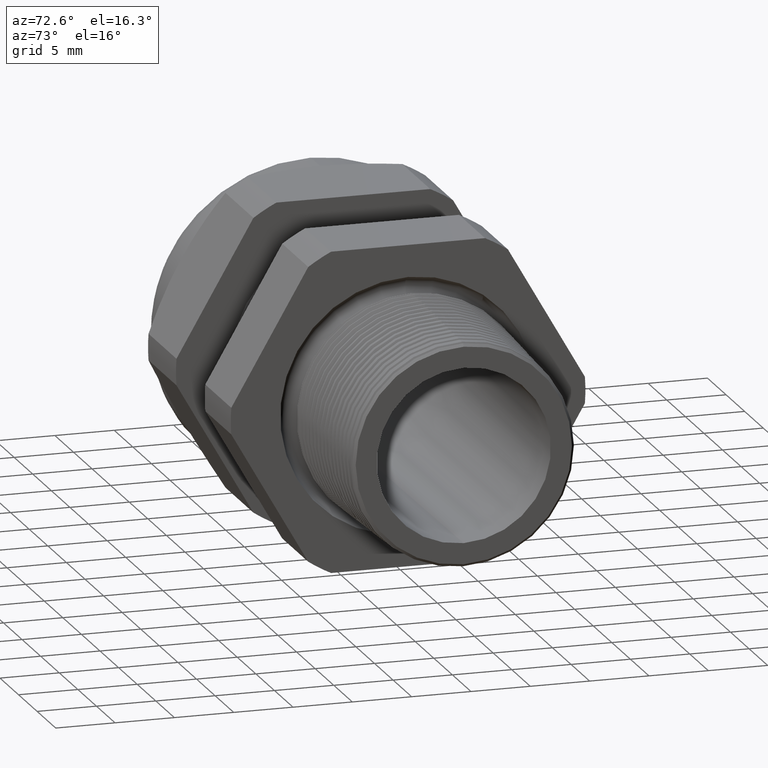
[diagram: clean part render]
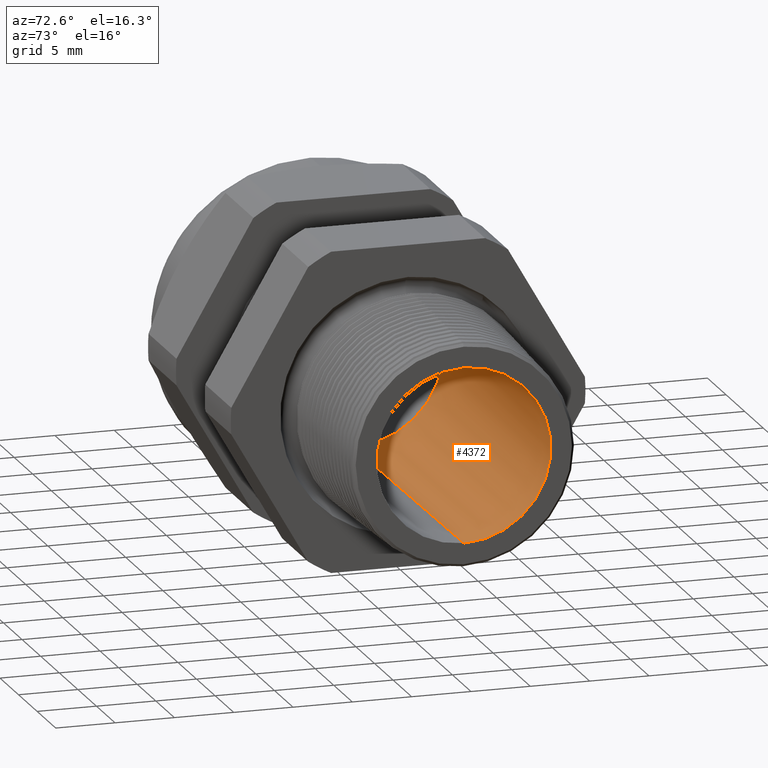
[diagram: same view with one face highlighted and labeled with its STEP entity id]
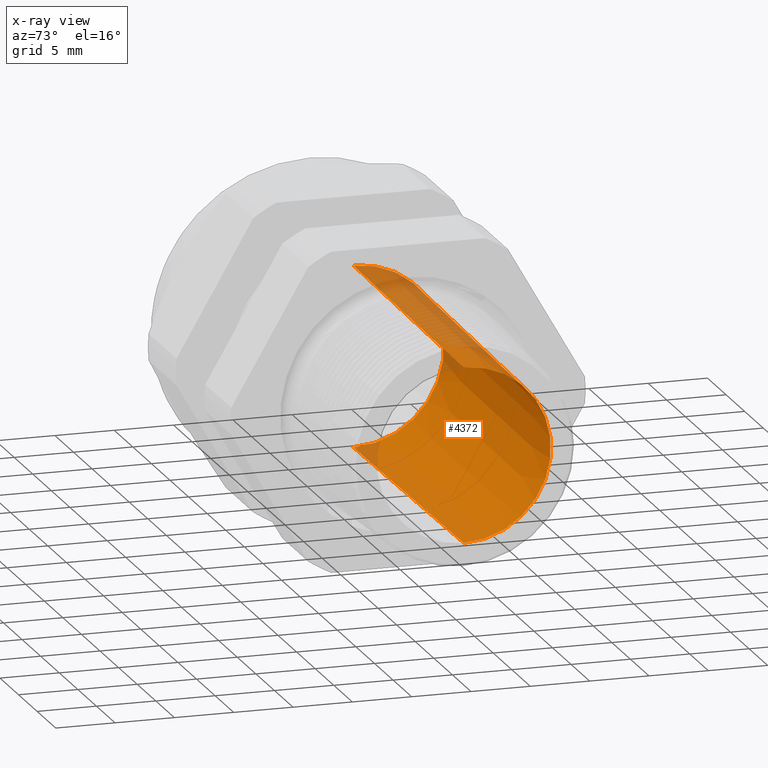
[diagram: x-ray of the same camera — body ghosted, the highlighted face saturated]
A machine part, auxiliary view. The second image highlights one B-rep face of the part: STEP entity #4372.
The next image is the same camera in x-ray: the body ghosted, the highlighted face saturated — about 15% of this face is hidden behind the body in this view.
In plain terms, the highlighted conical surface has half-angle 0.532 deg.
Its self-contained STEP definition (entity closure, byte-faithful):
#3137 = DIRECTION ( 'NONE',  ( 1.000000000000000000, 0.0000000000000000000, 0.0000000000000000000 ) ) ;
#3138 = AXIS2_PLACEMENT_3D ( 'NONE', #3143, #3137, #3203 ) ;
#3139 = CIRCLE ( 'NONE', #3138, 0.2999999999999999900 ) ;
#3143 = CARTESIAN_POINT ( 'NONE',  ( -0.8903149606299211000, 0.0000000000000000000, 0.0000000000000000000 ) ) ;
#3192 = DIRECTION ( 'NONE',  ( 0.0000000000000000000, 0.0000000000000000000, -1.000000000000000000 ) ) ;
#3193 = DIRECTION ( 'NONE',  ( 1.000000000000000000, 0.0000000000000000000, 0.0000000000000000000 ) ) ;
#3194 = AXIS2_PLACEMENT_3D ( 'NONE', #3200, #3193, #3192 ) ;
#3195 = CIRCLE ( 'NONE', #3194, 0.2891317010271071700 ) ;
#3196 = DIRECTION ( 'NONE',  ( 0.0000000000000000000, 0.0000000000000000000, 1.000000000000000000 ) ) ;
#3197 = DIRECTION ( 'NONE',  ( -1.000000000000000000, 0.0000000000000000000, 0.0000000000000000000 ) ) ;
#3198 = CARTESIAN_POINT ( 'NONE',  ( -0.8903149606299211000, 0.0000000000000000000, 0.0000000000000000000 ) ) ;
#3199 = AXIS2_PLACEMENT_3D ( 'NONE', #3198, #3197, #3196 ) ;
#3200 = CARTESIAN_POINT ( 'NONE',  ( 0.2800000000000000300, 0.0000000000000000000, 0.0000000000000000000 ) ) ;
#3201 = CONICAL_SURFACE ( 'NONE', #3199, 0.2999999999999999900, 0.009286377531604203500 ) ;
#3202 = FACE_OUTER_BOUND ( 'NONE', #4371, .T. ) ;
#3203 = DIRECTION ( 'NONE',  ( 0.0000000000000000000, 0.0000000000000000000, -1.000000000000000000 ) ) ;
#3743 = CARTESIAN_POINT ( 'NONE',  ( -0.8903149606299211000, 3.673940397442058900E-017, -0.2999999999999999900 ) ) ;
#4365 = ORIENTED_EDGE ( 'NONE', *, *, #4370, .F. ) ;
#4366 = ORIENTED_EDGE ( 'NONE', *, *, #4789, .T. ) ;
#4367 = ORIENTED_EDGE ( 'NONE', *, *, #4373, .T. ) ;
#4368 = ORIENTED_EDGE ( 'NONE', *, *, #4791, .F. ) ;
#4370 = EDGE_CURVE ( 'NONE', #4716, #4725, #3139, .T. ) ;
#4371 = EDGE_LOOP ( 'NONE', ( #4368, #4367, #4366, #4365 ) ) ;
#4372 = ADVANCED_FACE ( 'NONE', ( #3202 ), #3201, .F. ) ;
#4373 = EDGE_CURVE ( 'NONE', #4819, #4826, #3195, .T. ) ;
#4716 = VERTEX_POINT ( 'NONE', #3743 ) ;
#4725 = VERTEX_POINT ( 'NONE', #5069 ) ;
#4789 = EDGE_CURVE ( 'NONE', #4826, #4725, #5153, .T. ) ;
#4791 = EDGE_CURVE ( 'NONE', #4819, #4716, #5145, .T. ) ;
#4819 = VERTEX_POINT ( 'NONE', #5168 ) ;
#4826 = VERTEX_POINT ( 'NONE', #5216 ) ;
#5069 = CARTESIAN_POINT ( 'NONE',  ( -0.8903149606299211000, 0.0000000000000000000, 0.2999999999999999900 ) ) ;
#5142 = DIRECTION ( 'NONE',  ( -0.9999568819060354900, 1.137236906530786100E-018, -0.009286244060920868100 ) ) ;
#5143 = VECTOR ( 'NONE', #5142, 39.37007874015748100 ) ;
#5144 = CARTESIAN_POINT ( 'NONE',  ( -0.8903149606299211000, 3.673940397442058900E-017, -0.2999999999999999900 ) ) ;
#5145 = LINE ( 'NONE', #5144, #5143 ) ;
#5146 = DIRECTION ( 'NONE',  ( -0.9999568819060354900, 0.0000000000000000000, 0.009286244060920868100 ) ) ;
#5147 = VECTOR ( 'NONE', #5146, 39.37007874015748100 ) ;
#5148 = CARTESIAN_POINT ( 'NONE',  ( -0.8903149606299211000, 0.0000000000000000000, 0.2999999999999999900 ) ) ;
#5153 = LINE ( 'NONE', #5148, #5147 ) ;
#5168 = CARTESIAN_POINT ( 'NONE',  ( 0.2800000000000000300, 3.607391259695410900E-017, -0.2891317010271071700 ) ) ;
#5216 = CARTESIAN_POINT ( 'NONE',  ( 0.2800000000000000300, 0.0000000000000000000, 0.2891317010271071700 ) ) ;